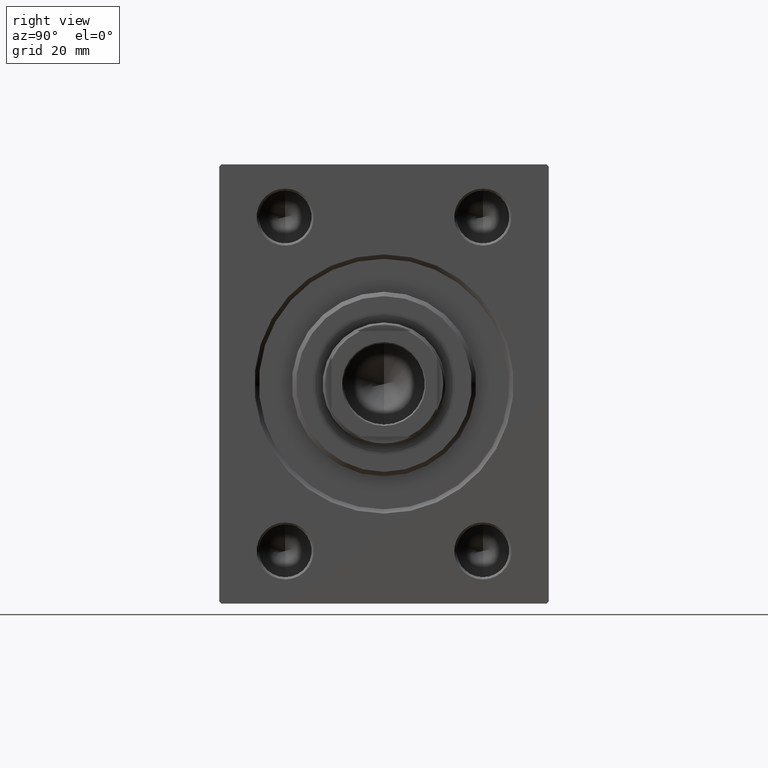
[diagram: clean part render]
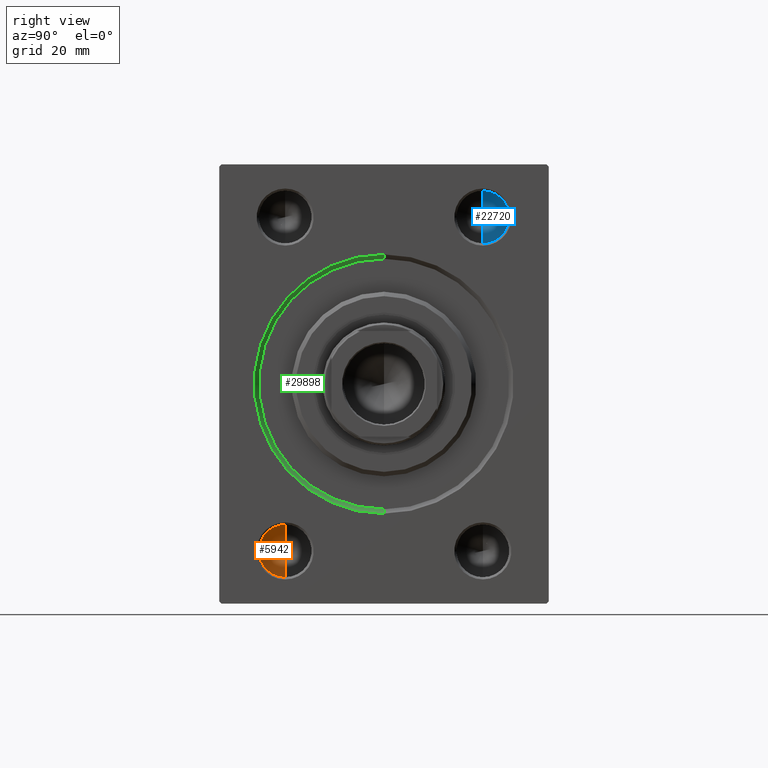
[diagram: same view with three faces highlighted in distinct colors, each labeled with its STEP entity id]
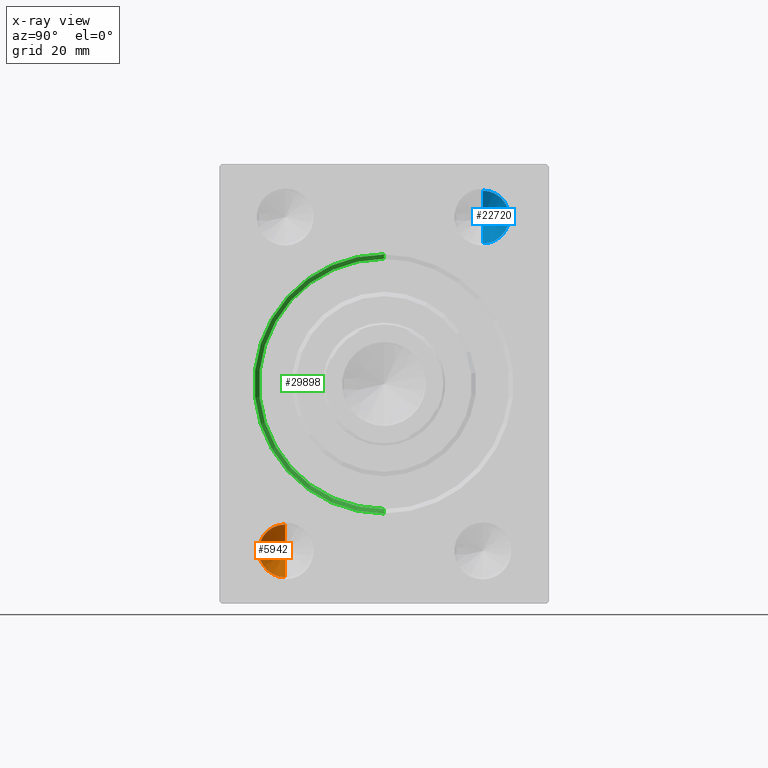
[diagram: x-ray of the same camera — body ghosted, the three highlighted faces saturated]
A machine part, right view with three faces highlighted in distinct colors.
The next image is the same camera in x-ray (body ghosted, the three faces saturated) — at least one of them is partly hidden behind the body in this view.
Their STEP definitions:

[orange] entity #5942 — the highlighted conical surface has half-angle 59 deg.
#3539 = EDGE_LOOP ( 'NONE', ( #3647, #19754, #36825 ) ) ;
#3647 = ORIENTED_EDGE ( 'NONE', *, *, #25307, .F. ) ;
#5726 = CARTESIAN_POINT ( 'NONE',  ( 20.00000000000000000, -22.50000000000000711, 32.00000000000000000 ) ) ;
#5797 = CARTESIAN_POINT ( 'NONE',  ( 20.00000000000000000, -22.50000000000000711, 44.00000000000000000 ) ) ;
#5942 = ADVANCED_FACE ( 'NONE', ( #24713 ), #27924, .F. ) ;
#7439 = DIRECTION ( 'NONE',  ( -1.000000000000000000, -0.000000000000000000, -0.000000000000000000 ) ) ;
#8546 = LINE ( 'NONE', #15372, #36351 ) ;
#9737 = DIRECTION ( 'NONE',  ( -0.5150380749100547106, 1.049727191138618326E-16, -0.8571673007021120005 ) ) ;
#10185 = CARTESIAN_POINT ( 'NONE',  ( 20.00000000000000000, -22.50000000000000711, 32.00000000000000000 ) ) ;
#12133 = VERTEX_POINT ( 'NONE', #5726 ) ;
#12854 = DIRECTION ( 'NONE',  ( 0.000000000000000000, 0.000000000000000000, 1.000000000000000000 ) ) ;
#15372 = CARTESIAN_POINT ( 'NONE',  ( 20.00000000000000000, -22.50000000000000711, 44.00000000000000000 ) ) ;
#18096 = DIRECTION ( 'NONE',  ( -0.5150380749100547106, 0.000000000000000000, 0.8571673007021120005 ) ) ;
#19754 = ORIENTED_EDGE ( 'NONE', *, *, #31074, .T. ) ;
#19893 = CARTESIAN_POINT ( 'NONE',  ( 20.00000000000000000, -22.50000000000000711, 38.00000000000000000 ) ) ;
#24713 = FACE_OUTER_BOUND ( 'NONE', #3539, .T. ) ;
#25307 = EDGE_CURVE ( 'NONE', #29713, #30074, #8546, .T. ) ;
#27924 = CONICAL_SURFACE ( 'NONE', #30854, 5.999999999999998224, 1.029744258676653867 ) ;
#28751 = AXIS2_PLACEMENT_3D ( 'NONE', #19893, #33339, #12854 ) ;
#29713 = VERTEX_POINT ( 'NONE', #33817 ) ;
#30074 = VERTEX_POINT ( 'NONE', #5797 ) ;
#30854 = AXIS2_PLACEMENT_3D ( 'NONE', #38590, #7439, #36094 ) ;
#31074 = EDGE_CURVE ( 'NONE', #29713, #12133, #44101, .T. ) ;
#33339 = DIRECTION ( 'NONE',  ( -1.000000000000000000, -0.000000000000000000, -0.000000000000000000 ) ) ;
#33817 = CARTESIAN_POINT ( 'NONE',  ( 23.60516371416536074, -22.50000000000001421, 38.00000000000000000 ) ) ;
#33837 = EDGE_CURVE ( 'NONE', #12133, #30074, #38916, .T. ) ;
#34202 = VECTOR ( 'NONE', #9737, 1000.000000000000000 ) ;
#36094 = DIRECTION ( 'NONE',  ( 0.000000000000000000, 0.000000000000000000, 1.000000000000000000 ) ) ;
#36351 = VECTOR ( 'NONE', #18096, 1000.000000000000000 ) ;
#36825 = ORIENTED_EDGE ( 'NONE', *, *, #33837, .T. ) ;
#38590 = CARTESIAN_POINT ( 'NONE',  ( 20.00000000000000000, -22.50000000000000711, 38.00000000000000000 ) ) ;
#38916 = CIRCLE ( 'NONE', #28751, 5.999999999999998224 ) ;
#44101 = LINE ( 'NONE', #10185, #34202 ) ;

[blue] entity #22720 — the highlighted conical surface has half-angle 59 deg.
#16 = VECTOR ( 'NONE', #286, 1000.000000000000000 ) ;
#286 = DIRECTION ( 'NONE',  ( -0.5150380749100547106, 1.049727191138618326E-16, -0.8571673007021120005 ) ) ;
#5516 = EDGE_CURVE ( 'NONE', #32500, #25995, #43210, .T. ) ;
#8981 = CARTESIAN_POINT ( 'NONE',  ( 20.00000000000000000, 22.49999999999999289, -32.00000000000000000 ) ) ;
#10489 = AXIS2_PLACEMENT_3D ( 'NONE', #28768, #21933, #25567 ) ;
#12694 = CARTESIAN_POINT ( 'NONE',  ( 20.00000000000000000, 22.49999999999999289, -44.00000000000000000 ) ) ;
#13297 = DIRECTION ( 'NONE',  ( 0.000000000000000000, 0.000000000000000000, 1.000000000000000000 ) ) ;
#14259 = ORIENTED_EDGE ( 'NONE', *, *, #25516, .F. ) ;
#16360 = LINE ( 'NONE', #40243, #26193 ) ;
#16641 = AXIS2_PLACEMENT_3D ( 'NONE', #34002, #26950, #13297 ) ;
#21731 = CONICAL_SURFACE ( 'NONE', #16641, 5.999999999999998224, 1.029744258676653867 ) ;
#21933 = DIRECTION ( 'NONE',  ( -1.000000000000000000, -0.000000000000000000, -0.000000000000000000 ) ) ;
#22720 = ADVANCED_FACE ( 'NONE', ( #44908 ), #21731, .F. ) ;
#23741 = LINE ( 'NONE', #41694, #16 ) ;
#25516 = EDGE_CURVE ( 'NONE', #28752, #25995, #23741, .T. ) ;
#25567 = DIRECTION ( 'NONE',  ( 0.000000000000000000, 0.000000000000000000, 1.000000000000000000 ) ) ;
#25995 = VERTEX_POINT ( 'NONE', #12694 ) ;
#26193 = VECTOR ( 'NONE', #36612, 1000.000000000000000 ) ;
#26950 = DIRECTION ( 'NONE',  ( -1.000000000000000000, -0.000000000000000000, -0.000000000000000000 ) ) ;
#28752 = VERTEX_POINT ( 'NONE', #41346 ) ;
#28768 = CARTESIAN_POINT ( 'NONE',  ( 20.00000000000000000, 22.49999999999999289, -38.00000000000000000 ) ) ;
#29526 = EDGE_CURVE ( 'NONE', #28752, #32500, #16360, .T. ) ;
#32500 = VERTEX_POINT ( 'NONE', #8981 ) ;
#33782 = EDGE_LOOP ( 'NONE', ( #14259, #39149, #39903 ) ) ;
#34002 = CARTESIAN_POINT ( 'NONE',  ( 20.00000000000000000, 22.49999999999999289, -38.00000000000000000 ) ) ;
#36612 = DIRECTION ( 'NONE',  ( -0.5150380749100547106, 0.000000000000000000, 0.8571673007021120005 ) ) ;
#39149 = ORIENTED_EDGE ( 'NONE', *, *, #29526, .T. ) ;
#39903 = ORIENTED_EDGE ( 'NONE', *, *, #5516, .T. ) ;
#40243 = CARTESIAN_POINT ( 'NONE',  ( 20.00000000000000000, 22.49999999999999289, -32.00000000000000000 ) ) ;
#41346 = CARTESIAN_POINT ( 'NONE',  ( 23.60516371416536074, 22.49999999999998579, -38.00000000000000000 ) ) ;
#41694 = CARTESIAN_POINT ( 'NONE',  ( 20.00000000000000000, 22.49999999999999289, -44.00000000000000000 ) ) ;
#43210 = CIRCLE ( 'NONE', #10489, 5.999999999999998224 ) ;
#44908 = FACE_OUTER_BOUND ( 'NONE', #33782, .T. ) ;

[green] entity #29898 — the highlighted conical surface has half-angle 45 deg.
#1442 = EDGE_CURVE ( 'NONE', #9111, #40023, #6771, .T. ) ;
#2168 = CARTESIAN_POINT ( 'NONE',  ( 1.000000000000018208, 0.000000000000000000, 28.50000000000000000 ) ) ;
#3116 = CARTESIAN_POINT ( 'NONE',  ( 0.000000000000000000, 0.000000000000000000, 0.000000000000000000 ) ) ;
#3595 = DIRECTION ( 'NONE',  ( 0.000000000000000000, 0.000000000000000000, -1.000000000000000000 ) ) ;
#6333 = CARTESIAN_POINT ( 'NONE',  ( 1.000000000000018208, 3.490243377569956456E-15, -28.50000000000000000 ) ) ;
#6771 = CIRCLE ( 'NONE', #34378, 29.50000000000001421 ) ;
#7014 = CARTESIAN_POINT ( 'NONE',  ( 1.000000000000018208, 0.000000000000000000, 0.000000000000000000 ) ) ;
#8732 = CARTESIAN_POINT ( 'NONE',  ( 0.000000000000000000, 0.000000000000000000, 29.50000000000001421 ) ) ;
#9111 = VERTEX_POINT ( 'NONE', #8732 ) ;
#10578 = CARTESIAN_POINT ( 'NONE',  ( 1.000000000000018208, 0.000000000000000000, 0.000000000000000000 ) ) ;
#12397 = CONICAL_SURFACE ( 'NONE', #30531, 28.50000000000000000, 0.7853981633974466137 ) ;
#13379 = DIRECTION ( 'NONE',  ( -0.7071067811865487940, 8.659560562354919300E-17, -0.7071067811865463515 ) ) ;
#13753 = CARTESIAN_POINT ( 'NONE',  ( 1.000000000000018208, 3.490243377569956456E-15, -28.50000000000000000 ) ) ;
#15482 = CARTESIAN_POINT ( 'NONE',  ( 0.000000000000000000, 3.612708057484693970E-15, -29.50000000000001421 ) ) ;
#16529 = EDGE_CURVE ( 'NONE', #23583, #23524, #41207, .T. ) ;
#16799 = LINE ( 'NONE', #6333, #22639 ) ;
#17852 = FACE_OUTER_BOUND ( 'NONE', #21945, .T. ) ;
#18643 = ORIENTED_EDGE ( 'NONE', *, *, #16529, .F. ) ;
#18947 = VECTOR ( 'NONE', #33337, 1000.000000000000000 ) ;
#20108 = LINE ( 'NONE', #2168, #18947 ) ;
#21325 = ORIENTED_EDGE ( 'NONE', *, *, #28698, .T. ) ;
#21945 = EDGE_LOOP ( 'NONE', ( #18643, #21325, #39116, #43900 ) ) ;
#22639 = VECTOR ( 'NONE', #13379, 1000.000000000000000 ) ;
#23524 = VERTEX_POINT ( 'NONE', #26962 ) ;
#23583 = VERTEX_POINT ( 'NONE', #13753 ) ;
#25428 = EDGE_CURVE ( 'NONE', #23524, #9111, #20108, .T. ) ;
#26962 = CARTESIAN_POINT ( 'NONE',  ( 1.000000000000018208, 0.000000000000000000, 28.50000000000000000 ) ) ;
#28698 = EDGE_CURVE ( 'NONE', #23583, #40023, #16799, .T. ) ;
#29898 = ADVANCED_FACE ( 'NONE', ( #17852 ), #12397, .F. ) ;
#30531 = AXIS2_PLACEMENT_3D ( 'NONE', #10578, #38324, #35370 ) ;
#33337 = DIRECTION ( 'NONE',  ( -0.7071067811865487940, 0.000000000000000000, 0.7071067811865463515 ) ) ;
#33842 = DIRECTION ( 'NONE',  ( 0.000000000000000000, 0.000000000000000000, -1.000000000000000000 ) ) ;
#34378 = AXIS2_PLACEMENT_3D ( 'NONE', #3116, #44089, #33842 ) ;
#34764 = DIRECTION ( 'NONE',  ( -1.000000000000000000, 0.000000000000000000, 0.000000000000000000 ) ) ;
#35370 = DIRECTION ( 'NONE',  ( 0.000000000000000000, 0.000000000000000000, 1.000000000000000000 ) ) ;
#35400 = AXIS2_PLACEMENT_3D ( 'NONE', #7014, #34764, #3595 ) ;
#38324 = DIRECTION ( 'NONE',  ( -1.000000000000000000, 0.000000000000000000, 0.000000000000000000 ) ) ;
#39116 = ORIENTED_EDGE ( 'NONE', *, *, #1442, .F. ) ;
#40023 = VERTEX_POINT ( 'NONE', #15482 ) ;
#41207 = CIRCLE ( 'NONE', #35400, 28.50000000000000000 ) ;
#43900 = ORIENTED_EDGE ( 'NONE', *, *, #25428, .F. ) ;
#44089 = DIRECTION ( 'NONE',  ( 1.000000000000000000, 0.000000000000000000, 0.000000000000000000 ) ) ;